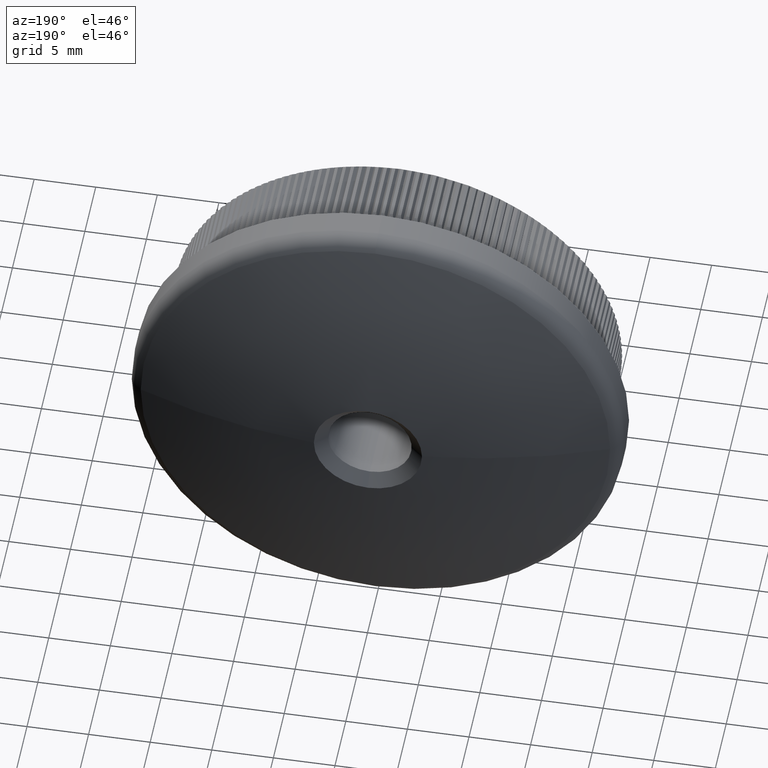
[diagram: clean part render]
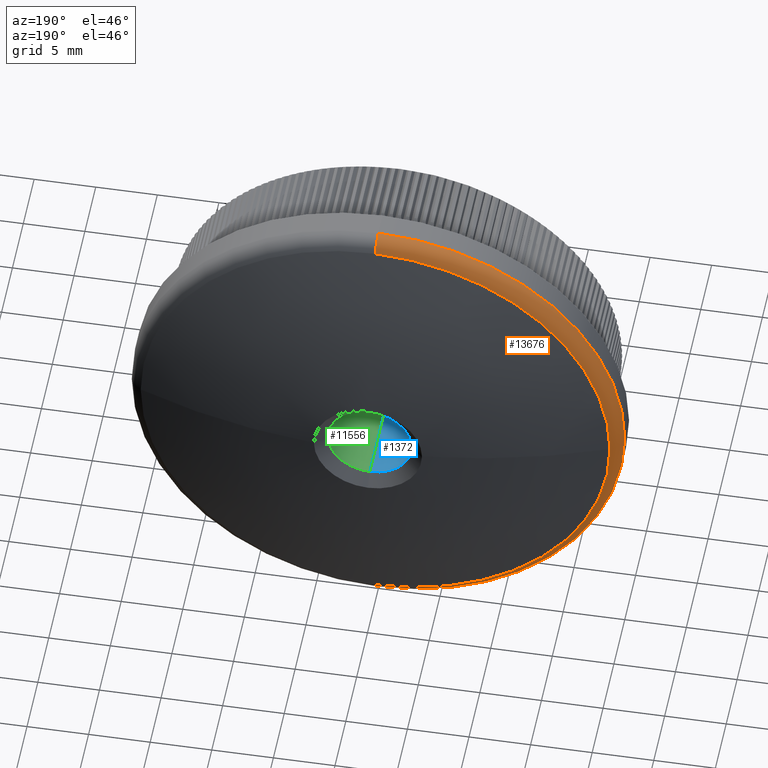
[diagram: same view with three faces highlighted in distinct colors, each labeled with its STEP entity id]
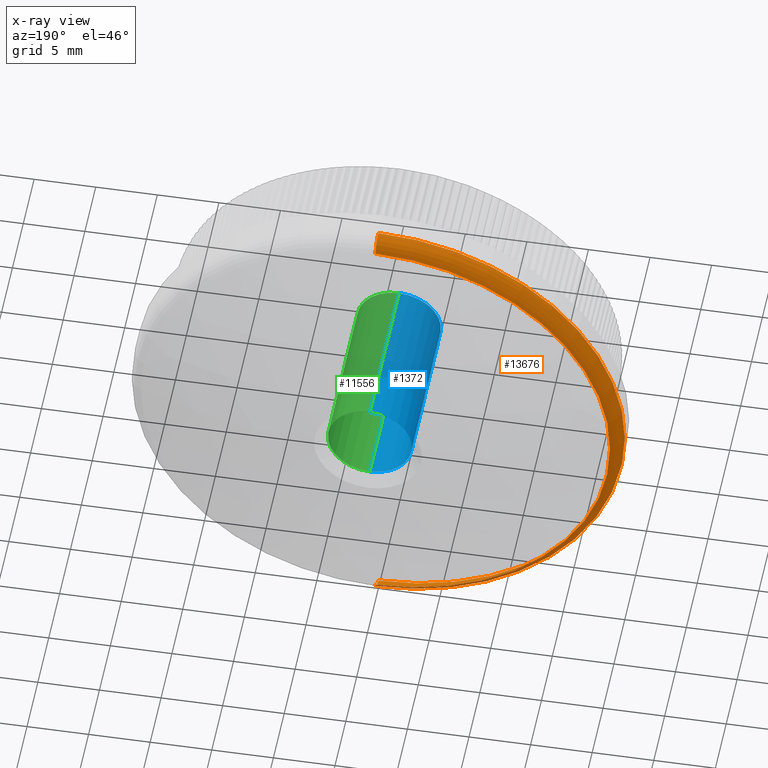
[diagram: x-ray of the same camera — body ghosted, the three highlighted faces saturated]
A machine part, auxiliary view with three faces highlighted in distinct colors.
The next image is the same camera in x-ray (body ghosted, the three faces saturated) — at least one of them is partly hidden behind the body in this view.
Their STEP definitions:

[orange] entity #13676 — the highlighted toroidal blend (fillet) surface has major radius 18.5 mm and minor (blend) radius 1.5 mm.
#400 = AXIS2_PLACEMENT_3D ( 'NONE', #603, #19455, #21935 ) ;
#603 = CARTESIAN_POINT ( 'NONE',  ( 0.0000000000000000000, 11.38508407702794900, 0.0000000000000000000 ) ) ;
#887 = CIRCLE ( 'NONE', #12834, 20.00000000000000000 ) ;
#1054 = DIRECTION ( 'NONE',  ( 0.0000000000000000000, 0.0000000000000000000, 1.000000000000000000 ) ) ;
#1464 = VERTEX_POINT ( 'NONE', #6805 ) ;
#1678 = DIRECTION ( 'NONE',  ( -0.0000000000000000000, -1.000000000000000000, -0.0000000000000000000 ) ) ;
#2392 = EDGE_LOOP ( 'NONE', ( #15838, #7008, #17977, #27093, #11274 ) ) ;
#2792 = EDGE_CURVE ( 'NONE', #14950, #24374, #14799, .T. ) ;
#3432 = DIRECTION ( 'NONE',  ( -1.000000000000000000, 0.0000000000000000000, 0.0000000000000000000 ) ) ;
#3728 = DIRECTION ( 'NONE',  ( 1.000000000000000000, 0.0000000000000000000, -1.224646799147353000E-016 ) ) ;
#3750 = DIRECTION ( 'NONE',  ( 0.0000000000000000000, 0.0000000000000000000, -1.000000000000000000 ) ) ;
#6108 = CARTESIAN_POINT ( 'NONE',  ( 2.265596578422603000E-015, 9.989360497882925600, 18.50000000000000000 ) ) ;
#6368 = DIRECTION ( 'NONE',  ( -0.0000000000000000000, -1.000000000000000000, -0.0000000000000000000 ) ) ;
#6805 = CARTESIAN_POINT ( 'NONE',  ( 2.449293598294706500E-015, 9.989360497882925600, 20.00000000000000000 ) ) ;
#7008 = ORIENTED_EDGE ( 'NONE', *, *, #27842, .F. ) ;
#8881 = DIRECTION ( 'NONE',  ( 0.0000000000000000000, 0.0000000000000000000, -1.000000000000000000 ) ) ;
#9863 = AXIS2_PLACEMENT_3D ( 'NONE', #19810, #3432, #1054 ) ;
#10568 = CIRCLE ( 'NONE', #22599, 19.04950495049504900 ) ;
#11081 = CARTESIAN_POINT ( 'NONE',  ( 0.0000000000000000000, 9.989360497882925600, 0.0000000000000000000 ) ) ;
#11274 = ORIENTED_EDGE ( 'NONE', *, *, #19780, .F. ) ;
#11350 = DIRECTION ( 'NONE',  ( 0.0000000000000000000, 0.0000000000000000000, -1.000000000000000000 ) ) ;
#12375 = AXIS2_PLACEMENT_3D ( 'NONE', #6108, #3728, #20126 ) ;
#12834 = AXIS2_PLACEMENT_3D ( 'NONE', #11081, #6368, #8881 ) ;
#13676 = ADVANCED_FACE ( 'NONE', ( #14731 ), #27306, .T. ) ;
#14381 = CARTESIAN_POINT ( 'NONE',  ( 0.0000000000000000000, 9.989360497882925600, -20.00000000000000000 ) ) ;
#14731 = FACE_OUTER_BOUND ( 'NONE', #2392, .T. ) ;
#14799 = CIRCLE ( 'NONE', #400, 19.04950495049504900 ) ;
#14950 = VERTEX_POINT ( 'NONE', #26547 ) ;
#15838 = ORIENTED_EDGE ( 'NONE', *, *, #16297, .F. ) ;
#16297 = EDGE_CURVE ( 'NONE', #19231, #1464, #24652, .T. ) ;
#17418 = CARTESIAN_POINT ( 'NONE',  ( 2.391092562295623400E-015, 11.38508407702794900, 19.04950495049504900 ) ) ;
#17747 = CARTESIAN_POINT ( 'NONE',  ( 0.0000000000000000000, 9.989360497882925600, 0.0000000000000000000 ) ) ;
#17977 = ORIENTED_EDGE ( 'NONE', *, *, #2792, .F. ) ;
#18488 = CARTESIAN_POINT ( 'NONE',  ( -19.04950495049505900, 11.38508407702794900, 2.332891526296543800E-015 ) ) ;
#19231 = VERTEX_POINT ( 'NONE', #17418 ) ;
#19455 = DIRECTION ( 'NONE',  ( 0.0000000000000000000, 1.000000000000000000, 0.0000000000000000000 ) ) ;
#19780 = EDGE_CURVE ( 'NONE', #1464, #20381, #887, .T. ) ;
#19810 = CARTESIAN_POINT ( 'NONE',  ( 0.0000000000000000000, 9.989360497882925600, -18.50000000000000000 ) ) ;
#20068 = CIRCLE ( 'NONE', #9863, 1.500000000000001300 ) ;
#20126 = DIRECTION ( 'NONE',  ( -1.224646799147352000E-016, 0.0000000000000000000, -1.000000000000000000 ) ) ;
#20381 = VERTEX_POINT ( 'NONE', #14381 ) ;
#21868 = EDGE_CURVE ( 'NONE', #14950, #20381, #20068, .T. ) ;
#21935 = DIRECTION ( 'NONE',  ( 0.0000000000000000000, 0.0000000000000000000, -1.000000000000000000 ) ) ;
#22599 = AXIS2_PLACEMENT_3D ( 'NONE', #30609, #28144, #11350 ) ;
#24374 = VERTEX_POINT ( 'NONE', #18488 ) ;
#24652 = CIRCLE ( 'NONE', #12375, 1.500000000000001300 ) ;
#25047 = AXIS2_PLACEMENT_3D ( 'NONE', #17747, #1678, #3750 ) ;
#26547 = CARTESIAN_POINT ( 'NONE',  ( 0.0000000000000000000, 11.38508407702794900, -19.04950495049504900 ) ) ;
#27093 = ORIENTED_EDGE ( 'NONE', *, *, #21868, .T. ) ;
#27306 = TOROIDAL_SURFACE ( 'NONE', #25047, 18.50000000000000000, 1.500000000000000000 ) ;
#27842 = EDGE_CURVE ( 'NONE', #24374, #19231, #10568, .T. ) ;
#28144 = DIRECTION ( 'NONE',  ( 0.0000000000000000000, 1.000000000000000000, 0.0000000000000000000 ) ) ;
#30609 = CARTESIAN_POINT ( 'NONE',  ( 0.0000000000000000000, 11.38508407702794900, 0.0000000000000000000 ) ) ;

[blue] entity #1372 — the highlighted cylindrical surface (partial cylindrical patch) has radius 3.4 mm, axis along (-0, -1, -0).
#36 = CARTESIAN_POINT ( 'NONE',  ( 0.0000000000000000000, 13.94820987779079500, 0.0000000000000000000 ) ) ;
#1372 = ADVANCED_FACE ( 'NONE', ( #17462 ), #25626, .F. ) ;
#1384 = VERTEX_POINT ( 'NONE', #4297 ) ;
#1958 = DIRECTION ( 'NONE',  ( -0.0000000000000000000, -1.000000000000000000, -0.0000000000000000000 ) ) ;
#2063 = CARTESIAN_POINT ( 'NONE',  ( 4.163799117100995600E-016, 0.0000000000000000000, 3.399999999999995500 ) ) ;
#2086 = CARTESIAN_POINT ( 'NONE',  ( 4.163799117100995600E-016, 13.94820987779079500, 3.399999999999995500 ) ) ;
#2187 = EDGE_LOOP ( 'NONE', ( #27043, #28220, #8714, #19564 ) ) ;
#4297 = CARTESIAN_POINT ( 'NONE',  ( 0.0000000000000000000, 13.94820987779079500, -3.399999999999995500 ) ) ;
#4411 = CARTESIAN_POINT ( 'NONE',  ( 0.0000000000000000000, 0.4999999999999961100, 0.0000000000000000000 ) ) ;
#6762 = DIRECTION ( 'NONE',  ( 0.0000000000000000000, 1.000000000000000000, 0.0000000000000000000 ) ) ;
#6887 = DIRECTION ( 'NONE',  ( -0.0000000000000000000, -1.000000000000000000, -0.0000000000000000000 ) ) ;
#7924 = AXIS2_PLACEMENT_3D ( 'NONE', #25219, #18203, #18302 ) ;
#8714 = ORIENTED_EDGE ( 'NONE', *, *, #25517, .T. ) ;
#9541 = CARTESIAN_POINT ( 'NONE',  ( 4.163799117100995600E-016, 0.4999999999999961100, 3.399999999999995500 ) ) ;
#10678 = AXIS2_PLACEMENT_3D ( 'NONE', #36, #6762, #25908 ) ;
#10952 = EDGE_CURVE ( 'NONE', #1384, #12978, #15542, .T. ) ;
#11375 = EDGE_CURVE ( 'NONE', #12978, #20849, #28860, .T. ) ;
#12978 = VERTEX_POINT ( 'NONE', #2086 ) ;
#13340 = EDGE_CURVE ( 'NONE', #1384, #18084, #26271, .T. ) ;
#14880 = CARTESIAN_POINT ( 'NONE',  ( 0.0000000000000000000, 0.4999999999999961100, -3.399999999999995500 ) ) ;
#15542 = CIRCLE ( 'NONE', #10678, 3.399999999999995500 ) ;
#16304 = DIRECTION ( 'NONE',  ( 0.0000000000000000000, -1.000000000000000000, 0.0000000000000000000 ) ) ;
#17462 = FACE_OUTER_BOUND ( 'NONE', #2187, .T. ) ;
#18084 = VERTEX_POINT ( 'NONE', #14880 ) ;
#18203 = DIRECTION ( 'NONE',  ( -0.0000000000000000000, -1.000000000000000000, -0.0000000000000000000 ) ) ;
#18302 = DIRECTION ( 'NONE',  ( 0.0000000000000000000, 0.0000000000000000000, -1.000000000000000000 ) ) ;
#19564 = ORIENTED_EDGE ( 'NONE', *, *, #13340, .F. ) ;
#20050 = VECTOR ( 'NONE', #1958, 1000.000000000000000 ) ;
#20849 = VERTEX_POINT ( 'NONE', #9541 ) ;
#21706 = CARTESIAN_POINT ( 'NONE',  ( 0.0000000000000000000, 0.0000000000000000000, -3.399999999999995500 ) ) ;
#25219 = CARTESIAN_POINT ( 'NONE',  ( 0.0000000000000000000, 0.0000000000000000000, 0.0000000000000000000 ) ) ;
#25517 = EDGE_CURVE ( 'NONE', #20849, #18084, #26902, .T. ) ;
#25626 = CYLINDRICAL_SURFACE ( 'NONE', #7924, 3.399999999999995500 ) ;
#25737 = DIRECTION ( 'NONE',  ( 0.0000000000000000000, 0.0000000000000000000, -1.000000000000000000 ) ) ;
#25908 = DIRECTION ( 'NONE',  ( 0.0000000000000000000, 0.0000000000000000000, 1.000000000000000000 ) ) ;
#26271 = LINE ( 'NONE', #21706, #28085 ) ;
#26902 = CIRCLE ( 'NONE', #28282, 3.399999999999995500 ) ;
#27043 = ORIENTED_EDGE ( 'NONE', *, *, #10952, .T. ) ;
#28085 = VECTOR ( 'NONE', #6887, 1000.000000000000000 ) ;
#28220 = ORIENTED_EDGE ( 'NONE', *, *, #11375, .T. ) ;
#28282 = AXIS2_PLACEMENT_3D ( 'NONE', #4411, #16304, #25737 ) ;
#28860 = LINE ( 'NONE', #2063, #20050 ) ;

[green] entity #11556 — the highlighted cylindrical surface (partial cylindrical patch) has radius 3.4 mm, axis along (-0, -1, -0).
#651 = DIRECTION ( 'NONE',  ( 0.0000000000000000000, 0.0000000000000000000, -1.000000000000000000 ) ) ;
#1384 = VERTEX_POINT ( 'NONE', #4297 ) ;
#1958 = DIRECTION ( 'NONE',  ( -0.0000000000000000000, -1.000000000000000000, -0.0000000000000000000 ) ) ;
#2063 = CARTESIAN_POINT ( 'NONE',  ( 4.163799117100995600E-016, 0.0000000000000000000, 3.399999999999995500 ) ) ;
#2086 = CARTESIAN_POINT ( 'NONE',  ( 4.163799117100995600E-016, 13.94820987779079500, 3.399999999999995500 ) ) ;
#2575 = CARTESIAN_POINT ( 'NONE',  ( 0.0000000000000000000, 0.0000000000000000000, 0.0000000000000000000 ) ) ;
#4297 = CARTESIAN_POINT ( 'NONE',  ( 0.0000000000000000000, 13.94820987779079500, -3.399999999999995500 ) ) ;
#4601 = EDGE_CURVE ( 'NONE', #12978, #1384, #14357, .T. ) ;
#4661 = CIRCLE ( 'NONE', #14886, 3.399999999999995500 ) ;
#6887 = DIRECTION ( 'NONE',  ( -0.0000000000000000000, -1.000000000000000000, -0.0000000000000000000 ) ) ;
#7135 = CARTESIAN_POINT ( 'NONE',  ( 0.0000000000000000000, 13.94820987779079500, 0.0000000000000000000 ) ) ;
#8045 = CYLINDRICAL_SURFACE ( 'NONE', #28556, 3.399999999999995500 ) ;
#9541 = CARTESIAN_POINT ( 'NONE',  ( 4.163799117100995600E-016, 0.4999999999999961100, 3.399999999999995500 ) ) ;
#9550 = DIRECTION ( 'NONE',  ( 0.0000000000000000000, 1.000000000000000000, 0.0000000000000000000 ) ) ;
#9785 = ORIENTED_EDGE ( 'NONE', *, *, #23845, .T. ) ;
#10101 = DIRECTION ( 'NONE',  ( 0.0000000000000000000, -1.000000000000000000, 0.0000000000000000000 ) ) ;
#11375 = EDGE_CURVE ( 'NONE', #12978, #20849, #28860, .T. ) ;
#11556 = ADVANCED_FACE ( 'NONE', ( #19282 ), #8045, .F. ) ;
#11943 = DIRECTION ( 'NONE',  ( 0.0000000000000000000, 0.0000000000000000000, 1.000000000000000000 ) ) ;
#11948 = DIRECTION ( 'NONE',  ( 0.0000000000000000000, 0.0000000000000000000, -1.000000000000000000 ) ) ;
#12978 = VERTEX_POINT ( 'NONE', #2086 ) ;
#13340 = EDGE_CURVE ( 'NONE', #1384, #18084, #26271, .T. ) ;
#14357 = CIRCLE ( 'NONE', #30651, 3.399999999999995500 ) ;
#14880 = CARTESIAN_POINT ( 'NONE',  ( 0.0000000000000000000, 0.4999999999999961100, -3.399999999999995500 ) ) ;
#14886 = AXIS2_PLACEMENT_3D ( 'NONE', #17191, #10101, #651 ) ;
#16859 = ORIENTED_EDGE ( 'NONE', *, *, #4601, .T. ) ;
#17191 = CARTESIAN_POINT ( 'NONE',  ( 0.0000000000000000000, 0.4999999999999961100, 0.0000000000000000000 ) ) ;
#17675 = ORIENTED_EDGE ( 'NONE', *, *, #11375, .F. ) ;
#18084 = VERTEX_POINT ( 'NONE', #14880 ) ;
#19272 = DIRECTION ( 'NONE',  ( -0.0000000000000000000, -1.000000000000000000, -0.0000000000000000000 ) ) ;
#19282 = FACE_OUTER_BOUND ( 'NONE', #29918, .T. ) ;
#20050 = VECTOR ( 'NONE', #1958, 1000.000000000000000 ) ;
#20849 = VERTEX_POINT ( 'NONE', #9541 ) ;
#21706 = CARTESIAN_POINT ( 'NONE',  ( 0.0000000000000000000, 0.0000000000000000000, -3.399999999999995500 ) ) ;
#23845 = EDGE_CURVE ( 'NONE', #18084, #20849, #4661, .T. ) ;
#26271 = LINE ( 'NONE', #21706, #28085 ) ;
#28085 = VECTOR ( 'NONE', #6887, 1000.000000000000000 ) ;
#28556 = AXIS2_PLACEMENT_3D ( 'NONE', #2575, #19272, #11948 ) ;
#28592 = ORIENTED_EDGE ( 'NONE', *, *, #13340, .T. ) ;
#28860 = LINE ( 'NONE', #2063, #20050 ) ;
#29918 = EDGE_LOOP ( 'NONE', ( #17675, #16859, #28592, #9785 ) ) ;
#30651 = AXIS2_PLACEMENT_3D ( 'NONE', #7135, #9550, #11943 ) ;